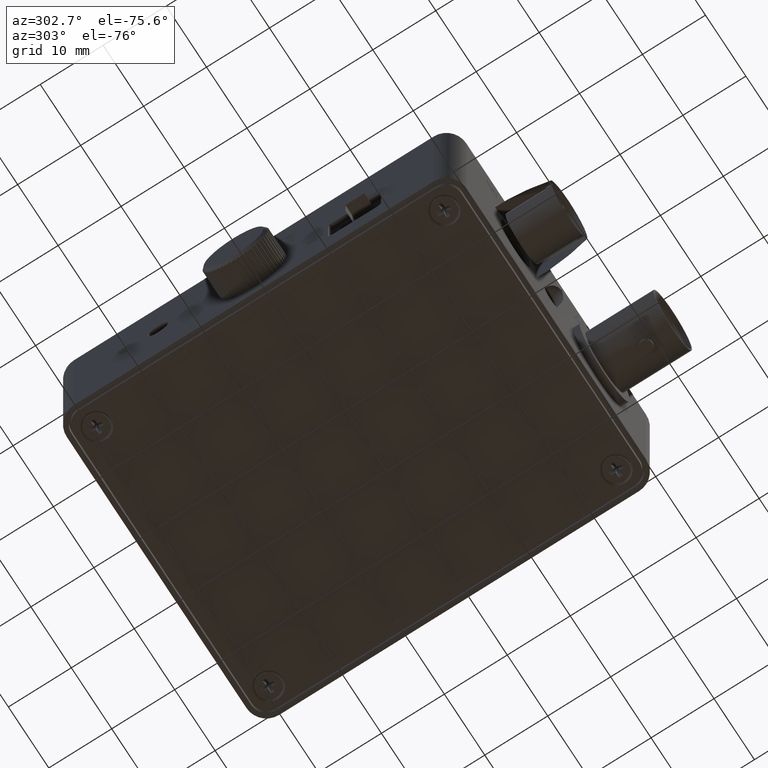
[diagram: clean part render]
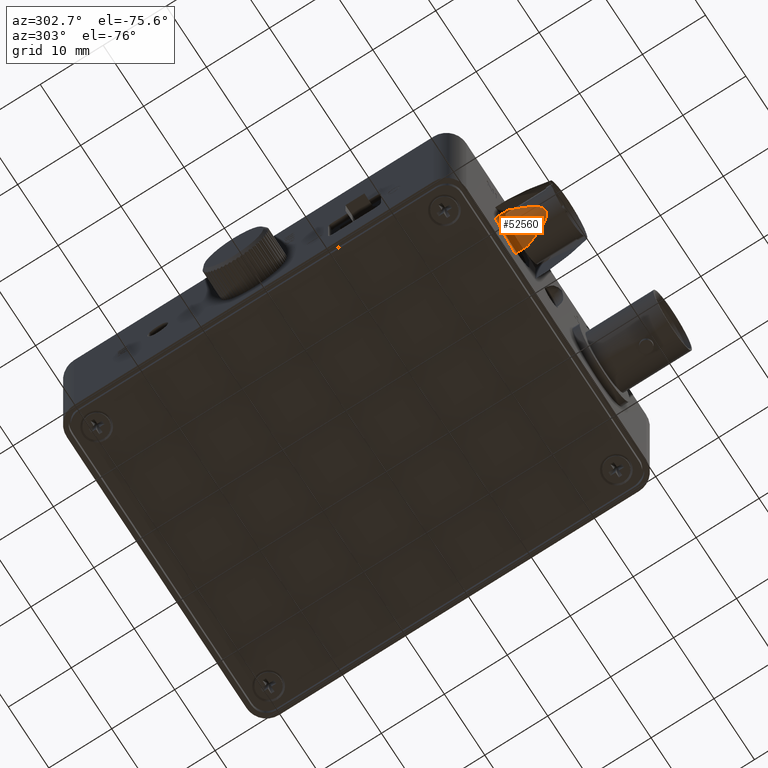
[diagram: same view with one face highlighted and labeled with its STEP entity id]
A machine part, auxiliary view. The second image highlights one B-rep face of the part: STEP entity #52560.
In plain terms, the highlighted planar face has unit normal (0.5, 0, 0.866).
Its self-contained STEP definition (entity closure, byte-faithful):
#150 = DIRECTION ( 'NONE',  ( -0.8660254037844386000, 0.5000000000000001100, 0.0000000000000000000 ) ) ;
#472 = ORIENTED_EDGE ( 'NONE', *, *, #15107, .T. ) ;
#558 = CARTESIAN_POINT ( 'NONE',  ( -4.979646071760525300, -2.874999999999999100, -2.891205793294678600E-015 ) ) ;
#2285 = CARTESIAN_POINT ( 'NONE',  ( -8.870539949408363800E-015, -5.749999999791921100, 2.000000002404331800 ) ) ;
#5309 = CARTESIAN_POINT ( 'NONE',  ( -3.200716639795294900, -3.902065386414471400, 6.082646517051676600 ) ) ;
#5730 = CARTESIAN_POINT ( 'NONE',  ( -1.074310592698544100, -5.129746490112228900, 4.947556770222436600 ) ) ;
#15000 = VECTOR ( 'NONE', #117201, 1000.000000000000000 ) ;
#15074 = CARTESIAN_POINT ( 'NONE',  ( -4.849253386556404700, -2.950282251902956800, 2.434964118877193800 ) ) ;
#15107 = EDGE_CURVE ( 'NONE', #17227, #49054, #23491, .T. ) ;
#15430 = PLANE ( 'NONE',  #51189 ) ;
#15515 = CARTESIAN_POINT ( 'NONE',  ( -2.869361955816650300, -4.093373102406787600, 6.346540256111579100 ) ) ;
#15948 = CARTESIAN_POINT ( 'NONE',  ( -0.7168923750077149700, -5.336101994309307100, 4.133965571103055400 ) ) ;
#17227 = VERTEX_POINT ( 'NONE', #58495 ) ;
#23491 = B_SPLINE_CURVE_WITH_KNOTS ( 'NONE', 3,
 ( #25184, #15074, #74833, #35312, #105587, #45415, #115622, #55582, #125720, #65578, #5309, #75678, #15515, #85780, #25619, #95895, #35745, #106008, #45844, #116047, #56005, #126175, #66007, #5730, #76120, #15948, #86177, #26060, #96321, #36172 ),
 .UNSPECIFIED., .F., .F.,
 ( 4, 2, 2, 2, 2, 2, 2, 2, 2, 2, 2, 2, 2, 2, 4 ),
 ( 0.0000000000000000000, 0.001379717008704105700, 0.002759434017408211400, 0.003449292521760265700, 0.004139151026112320400, 0.004829009530464375100, 0.005173938782640401600, 0.005518868034816427200, 0.005863797286992454600, 0.006208726539168481000, 0.006898585043520533100, 0.007588443547872586100, 0.008278302052224639100, 0.009658019060928746700, 0.01103773606963285300 ),
 .UNSPECIFIED. ) ;
#25184 = CARTESIAN_POINT ( 'NONE',  ( -4.979646071760525300, -2.874999985461619300, 2.000000042019582500 ) ) ;
#25619 = CARTESIAN_POINT ( 'NONE',  ( -2.581502048697482500, -4.259569097270939700, 6.452355604574505900 ) ) ;
#25975 = DIRECTION ( 'NONE',  ( 0.5000000000000001100, 0.8660254037844386000, -0.0000000000000000000 ) ) ;
#26060 = CARTESIAN_POINT ( 'NONE',  ( -0.2662257511287376400, -5.596294490920614700, 2.863565066436003300 ) ) ;
#28090 = CARTESIAN_POINT ( 'NONE',  ( -7.806255641895631900E-015, -5.749999999999996400, 8.500000000000000000 ) ) ;
#31574 = EDGE_CURVE ( 'NONE', #85460, #17227, #126436, .T. ) ;
#35312 = CARTESIAN_POINT ( 'NONE',  ( -4.417004537221354000, -3.199841241423456100, 3.721248390482318600 ) ) ;
#35745 = CARTESIAN_POINT ( 'NONE',  ( -2.280143170193399600, -4.433558726897954800, 6.423622180006181500 ) ) ;
#36172 = CARTESIAN_POINT ( 'NONE',  ( -8.870539949408363800E-015, -5.749999999791921100, 2.000000002404331800 ) ) ;
#40183 = EDGE_LOOP ( 'NONE', ( #472, #88416, #122572, #63778 ) ) ;
#45415 = CARTESIAN_POINT ( 'NONE',  ( -3.991730473860299000, -3.445373336384325700, 4.761099039526111900 ) ) ;
#45844 = CARTESIAN_POINT ( 'NONE',  ( -2.008222181252290000, -4.590552383061415200, 6.277005193593511800 ) ) ;
#49054 = VERTEX_POINT ( 'NONE', #2285 ) ;
#51189 = AXIS2_PLACEMENT_3D ( 'NONE', #86102, #25975, #96234 ) ;
#52560 = ADVANCED_FACE ( 'NONE', ( #74826 ), #15430, .T. ) ;
#55582 = CARTESIAN_POINT ( 'NONE',  ( -3.694376436117357000, -3.617050770119835800, 5.356737509776885500 ) ) ;
#56005 = CARTESIAN_POINT ( 'NONE',  ( -1.631744241073739700, -4.807912023167454600, 5.897838810653553300 ) ) ;
#58495 = CARTESIAN_POINT ( 'NONE',  ( -4.979646071760525300, -2.874999985461619300, 2.000000042019582500 ) ) ;
#63778 = ORIENTED_EDGE ( 'NONE', *, *, #31574, .T. ) ;
#65578 = CARTESIAN_POINT ( 'NONE',  ( -3.337123078823981600, -3.823311092122063700, 5.911977646599424900 ) ) ;
#66007 = CARTESIAN_POINT ( 'NONE',  ( -1.276405296178260600, -5.013067058656418800, 5.340666544390723300 ) ) ;
#70569 = CARTESIAN_POINT ( 'NONE',  ( -4.979646071760525300, -2.874999999999999100, -3.469446951953614200E-015 ) ) ;
#74826 = FACE_OUTER_BOUND ( 'NONE', #40183, .T. ) ;
#74833 = CARTESIAN_POINT ( 'NONE',  ( -4.712344506693698400, -3.029326630546141300, 2.866975873895346400 ) ) ;
#75678 = CARTESIAN_POINT ( 'NONE',  ( -2.955954598581539200, -4.043378816796637100, 6.288390942666462800 ) ) ;
#76120 = CARTESIAN_POINT ( 'NONE',  ( -0.9812449373109084500, -5.183477971302591100, 4.746330798040311500 ) ) ;
#85460 = VERTEX_POINT ( 'NONE', #558 ) ;
#85780 = CARTESIAN_POINT ( 'NONE',  ( -2.680847397686040500, -4.202212033289657500, 6.429558133101736800 ) ) ;
#86102 = CARTESIAN_POINT ( 'NONE',  ( -4.979646071760525300, -2.874999999999999100, 8.500000000000000000 ) ) ;
#86177 = CARTESIAN_POINT ( 'NONE',  ( -0.5601435273800643400, -5.426600983682294400, 3.714318286338187400 ) ) ;
#86842 = CARTESIAN_POINT ( 'NONE',  ( -4.979646071760525300, -2.874999999999999100, 8.500000000000000000 ) ) ;
#88416 = ORIENTED_EDGE ( 'NONE', *, *, #109872, .T. ) ;
#89552 = VECTOR ( 'NONE', #150, 1000.000000000000100 ) ;
#92035 = LINE ( 'NONE', #28090, #15000 ) ;
#95895 = CARTESIAN_POINT ( 'NONE',  ( -2.379085302971336400, -4.376434459904419100, 6.449371526314908300 ) ) ;
#96234 = DIRECTION ( 'NONE',  ( -0.8660254037844386000, 0.5000000000000001100, 0.0000000000000000000 ) ) ;
#96321 = CARTESIAN_POINT ( 'NONE',  ( -0.1298109414151520600, -5.675053618030204000, 2.433023540290409700 ) ) ;
#98128 = EDGE_CURVE ( 'NONE', #122546, #85460, #116273, .T. ) ;
#105587 = CARTESIAN_POINT ( 'NONE',  ( -4.258596650985860600, -3.291298077183274700, 4.144898419855639600 ) ) ;
#106008 = CARTESIAN_POINT ( 'NONE',  ( -2.093775461102255000, -4.541158173909980000, 6.336515664013299800 ) ) ;
#109076 = CARTESIAN_POINT ( 'NONE',  ( -7.937243187693929000E-015, -5.749999999999997300, -2.891205793294678600E-015 ) ) ;
#109872 = EDGE_CURVE ( 'NONE', #49054, #122546, #92035, .T. ) ;
#115622 = CARTESIAN_POINT ( 'NONE',  ( -3.897858033684980400, -3.499570614989032400, 4.963183005798351000 ) ) ;
#116047 = CARTESIAN_POINT ( 'NONE',  ( -1.766075377235788900, -4.730355905543750500, 6.068123828346089400 ) ) ;
#116273 = LINE ( 'NONE', #70569, #89552 ) ;
#117126 = DIRECTION ( 'NONE',  ( 0.0000000000000000000, 0.0000000000000000000, 1.000000000000000000 ) ) ;
#117201 = DIRECTION ( 'NONE',  ( -0.0000000000000000000, -0.0000000000000000000, -1.000000000000000000 ) ) ;
#122546 = VERTEX_POINT ( 'NONE', #109076 ) ;
#122572 = ORIENTED_EDGE ( 'NONE', *, *, #98128, .T. ) ;
#123308 = VECTOR ( 'NONE', #117126, 1000.000000000000000 ) ;
#125720 = CARTESIAN_POINT ( 'NONE',  ( -3.585115428140884100, -3.680132642486981400, 5.548442852424016400 ) ) ;
#126175 = CARTESIAN_POINT ( 'NONE',  ( -1.385704588202850900, -4.949963082983787300, 5.533704830173884500 ) ) ;
#126436 = LINE ( 'NONE', #86842, #123308 ) ;